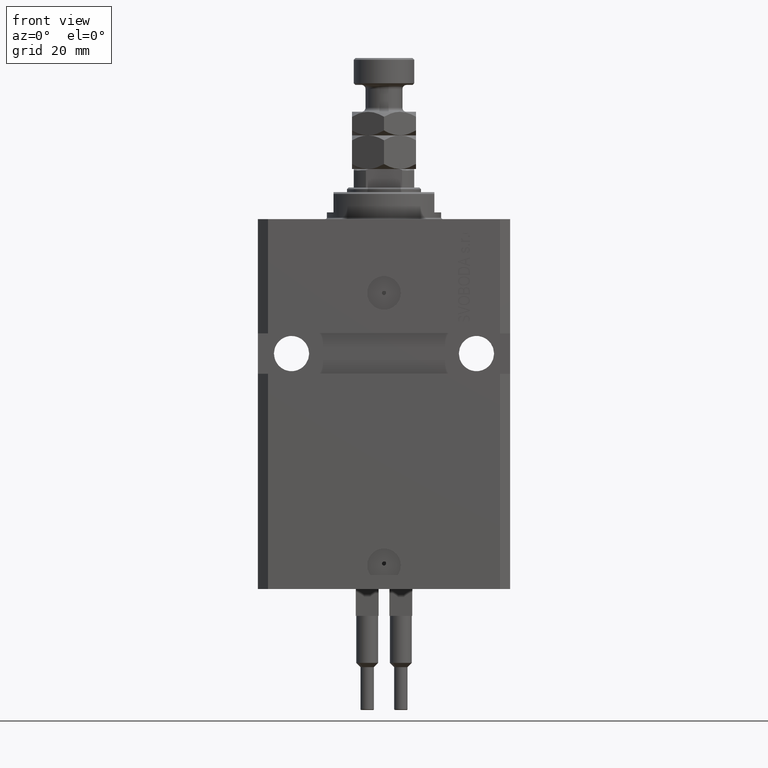
[diagram: clean part render]
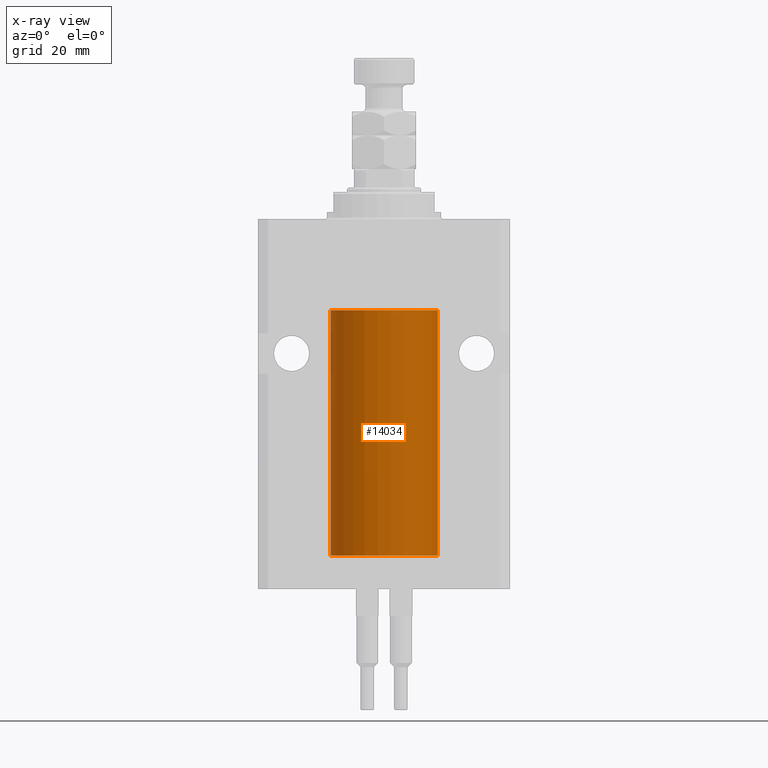
[diagram: x-ray — body ghosted, one internal face saturated and labeled with its STEP entity id]
A machine part, front view, then the same camera in x-ray: the body is ghosted and one INTERNAL B-rep face — a face not visible from any outside direction — is saturated and labeled: STEP entity #14034.
In plain terms, the highlighted cylindrical surface (partial cylindrical patch) has radius 16 mm, axis along (0, 0, 1).
Its self-contained STEP definition (entity closure, byte-faithful):
#538 = CARTESIAN_POINT ( 'NONE',  ( 16.00000000000013145, 3.665532692826917502E-13, -97.37499999999657518 ) ) ;
#997 = LINE ( 'NONE', #35906, #39239 ) ;
#1279 = CARTESIAN_POINT ( 'NONE',  ( 15.99708487730508821, -0.3264777333248483626, -97.44266166809921970 ) ) ;
#1381 = DIRECTION ( 'NONE',  ( -0.000000000000000000, -0.000000000000000000, 1.000000000000000000 ) ) ;
#2535 = ORIENTED_EDGE ( 'NONE', *, *, #22396, .F. ) ;
#3533 = EDGE_CURVE ( 'NONE', #13118, #17517, #25192, .T. ) ;
#3658 = AXIS2_PLACEMENT_3D ( 'NONE', #22825, #10842, #3846 ) ;
#3846 = DIRECTION ( 'NONE',  ( 1.000000000000000000, 0.000000000000000000, 0.000000000000000000 ) ) ;
#5787 = ORIENTED_EDGE ( 'NONE', *, *, #3533, .T. ) ;
#7342 = CARTESIAN_POINT ( 'NONE',  ( 0.000000000000000000, 0.000000000000000000, -100.0999999999999943 ) ) ;
#7622 = CARTESIAN_POINT ( 'NONE',  ( 15.98778830858102040, -0.6250000000001221245, -98.16481193282328377 ) ) ;
#9967 = DIRECTION ( 'NONE',  ( -0.000000000000000000, -0.000000000000000000, 1.000000000000000000 ) ) ;
#10842 = DIRECTION ( 'NONE',  ( 0.000000000000000000, 0.000000000000000000, 1.000000000000000000 ) ) ;
#10874 = CARTESIAN_POINT ( 'NONE',  ( 16.00000000000000000, -0.1650734421240358518, -98.62500000000002842 ) ) ;
#11718 = ORIENTED_EDGE ( 'NONE', *, *, #19339, .T. ) ;
#12507 = CARTESIAN_POINT ( 'NONE',  ( 15.99071289786271954, -0.5571474671814620194, -97.67319665488821556 ) ) ;
#13118 = VERTEX_POINT ( 'NONE', #18269 ) ;
#14034 = ADVANCED_FACE ( 'NONE', ( #42202 ), #26768, .F. ) ;
#16257 = CARTESIAN_POINT ( 'NONE',  ( 15.98778830858102040, -0.6250000000001221245, -97.83501479319285465 ) ) ;
#16498 = CARTESIAN_POINT ( 'NONE',  ( 15.98778830858101685, -0.6250000000001221245, -98.00000000000000000 ) ) ;
#17517 = VERTEX_POINT ( 'NONE', #37019 ) ;
#18269 = CARTESIAN_POINT ( 'NONE',  ( -16.00000000000000000, 1.959434878635765131E-15, -27.10000000000000142 ) ) ;
#18353 = CARTESIAN_POINT ( 'NONE',  ( 15.98778830858101685, -0.6250000000001221245, -98.00000000000000000 ) ) ;
#18710 = CIRCLE ( 'NONE', #44186, 16.00000000000000000 ) ;
#19339 = EDGE_CURVE ( 'NONE', #23472, #13118, #997, .T. ) ;
#20043 = VERTEX_POINT ( 'NONE', #46739 ) ;
#20253 = DIRECTION ( 'NONE',  ( 1.000000000000000000, 0.000000000000000000, 0.000000000000000000 ) ) ;
#20564 = VERTEX_POINT ( 'NONE', #45834 ) ;
#22200 = VERTEX_POINT ( 'NONE', #25555 ) ;
#22396 = EDGE_CURVE ( 'NONE', #22200, #34860, #24019, .T. ) ;
#22825 = CARTESIAN_POINT ( 'NONE',  ( 0.000000000000000000, 0.000000000000000000, -27.10000000000000142 ) ) ;
#23472 = VERTEX_POINT ( 'NONE', #24533 ) ;
#24019 = LINE ( 'NONE', #48102, #30448 ) ;
#24533 = CARTESIAN_POINT ( 'NONE',  ( -16.00000000000000000, 1.959434878635765131E-15, -100.0999999999999943 ) ) ;
#25192 = CIRCLE ( 'NONE', #3658, 16.00000000000000000 ) ;
#25555 = CARTESIAN_POINT ( 'NONE',  ( 16.00000000000000000, 0.000000000000000000, -100.0999999999999943 ) ) ;
#25611 = CARTESIAN_POINT ( 'NONE',  ( 16.00000000000000000, -1.835653844722709729E-15, -98.62500000000000000 ) ) ;
#26768 = CYLINDRICAL_SURFACE ( 'NONE', #34181, 16.00000000000000000 ) ;
#27941 = DIRECTION ( 'NONE',  ( -0.000000000000000000, -0.000000000000000000, 1.000000000000000000 ) ) ;
#30448 = VECTOR ( 'NONE', #9967, 1000.000000000000000 ) ;
#30593 = CARTESIAN_POINT ( 'NONE',  ( 15.99707785788560521, -0.3267997233067475582, -98.55715215276643448 ) ) ;
#31009 = DIRECTION ( 'NONE',  ( -0.000000000000000000, -0.000000000000000000, 1.000000000000000000 ) ) ;
#31488 = CARTESIAN_POINT ( 'NONE',  ( 16.00000000000000355, -0.1632201307031984627, -97.37499999999980105 ) ) ;
#32086 = EDGE_LOOP ( 'NONE', ( #36591, #11718, #5787, #43034, #43159, #32175, #2535 ) ) ;
#32175 = ORIENTED_EDGE ( 'NONE', *, *, #44212, .T. ) ;
#32538 = EDGE_CURVE ( 'NONE', #20564, #17517, #39045, .T. ) ;
#32992 = EDGE_CURVE ( 'NONE', #23472, #22200, #18710, .T. ) ;
#33791 = DIRECTION ( 'NONE',  ( 1.000000000000000000, 0.000000000000000000, 0.000000000000000000 ) ) ;
#34181 = AXIS2_PLACEMENT_3D ( 'NONE', #38715, #31009, #20253 ) ;
#34284 = DIRECTION ( 'NONE',  ( 0.000000000000000000, 0.000000000000000000, 1.000000000000000000 ) ) ;
#34860 = VERTEX_POINT ( 'NONE', #48509 ) ;
#35906 = CARTESIAN_POINT ( 'NONE',  ( -16.00000000000000000, 1.959434878635765131E-15, -100.0999999999999943 ) ) ;
#36200 = VECTOR ( 'NONE', #1381, 1000.000000000000000 ) ;
#36591 = ORIENTED_EDGE ( 'NONE', *, *, #32992, .F. ) ;
#37019 = CARTESIAN_POINT ( 'NONE',  ( 16.00000000000000000, 0.000000000000000000, -27.10000000000000142 ) ) ;
#38715 = CARTESIAN_POINT ( 'NONE',  ( 0.000000000000000000, 0.000000000000000000, -100.0999999999999943 ) ) ;
#38860 = EDGE_CURVE ( 'NONE', #20564, #20043, #48894, .T. ) ;
#39045 = LINE ( 'NONE', #42532, #36200 ) ;
#39239 = VECTOR ( 'NONE', #27941, 1000.000000000000000 ) ;
#42202 = FACE_OUTER_BOUND ( 'NONE', #32086, .T. ) ;
#42532 = CARTESIAN_POINT ( 'NONE',  ( 16.00000000000000000, 0.000000000000000000, -100.0999999999999943 ) ) ;
#43034 = ORIENTED_EDGE ( 'NONE', *, *, #32538, .F. ) ;
#43159 = ORIENTED_EDGE ( 'NONE', *, *, #38860, .T. ) ;
#44186 = AXIS2_PLACEMENT_3D ( 'NONE', #7342, #34284, #33791 ) ;
#44212 = EDGE_CURVE ( 'NONE', #20043, #34860, #48049, .T. ) ;
#44772 = CARTESIAN_POINT ( 'NONE',  ( 15.99070553365076996, -0.5573460204199470747, -98.32646897863004654 ) ) ;
#45834 = CARTESIAN_POINT ( 'NONE',  ( 16.00000000000013145, 3.665532692826917502E-13, -97.37499999999657518 ) ) ;
#46739 = CARTESIAN_POINT ( 'NONE',  ( 15.98778830858101685, -0.6250000000001221245, -98.00000000000000000 ) ) ;
#48049 = B_SPLINE_CURVE_WITH_KNOTS ( 'NONE', 3,
 ( #18353, #7622, #44772, #30593, #10874, #25611 ),
 .UNSPECIFIED., .F., .F.,
 ( 4, 2, 4 ),
 ( 0.002931623410139858662, 0.003419811200989293816, 0.003907998991838729404 ),
 .UNSPECIFIED. ) ;
#48102 = CARTESIAN_POINT ( 'NONE',  ( 16.00000000000000000, 0.000000000000000000, -100.0999999999999943 ) ) ;
#48509 = CARTESIAN_POINT ( 'NONE',  ( 16.00000000000000000, -1.835653844722709729E-15, -98.62500000000000000 ) ) ;
#48894 = B_SPLINE_CURVE_WITH_KNOTS ( 'NONE', 3,
 ( #538, #31488, #1279, #12507, #16257, #16498 ),
 .UNSPECIFIED., .F., .F.,
 ( 4, 2, 4 ),
 ( 0.001954221322144537518, 0.002442922366142198307, 0.002931623410139858662 ),
 .UNSPECIFIED. ) ;